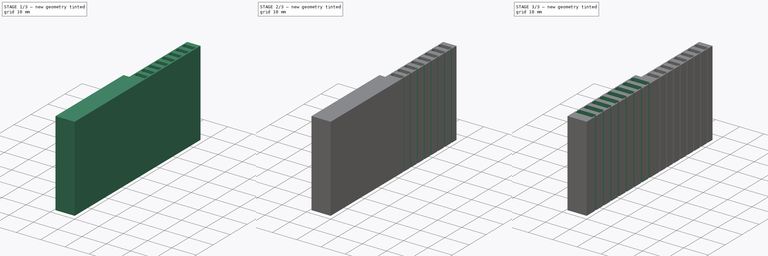
[diagram: build sequence overview — one tinted view per stage of 3, left to right]
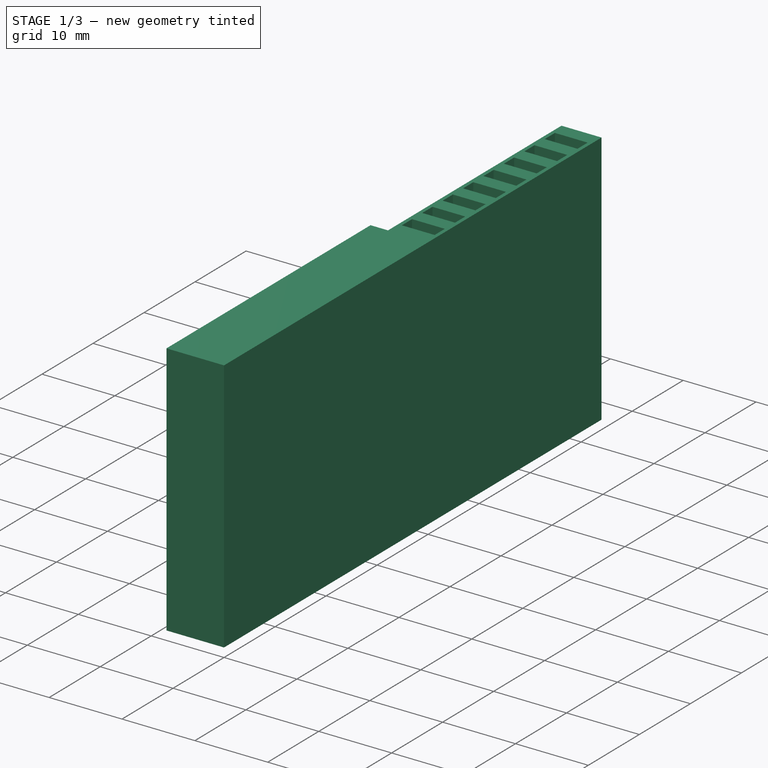
[diagram: stage 1 of 3 — iso view after this stage's code; geometry added in this stage tinted green]
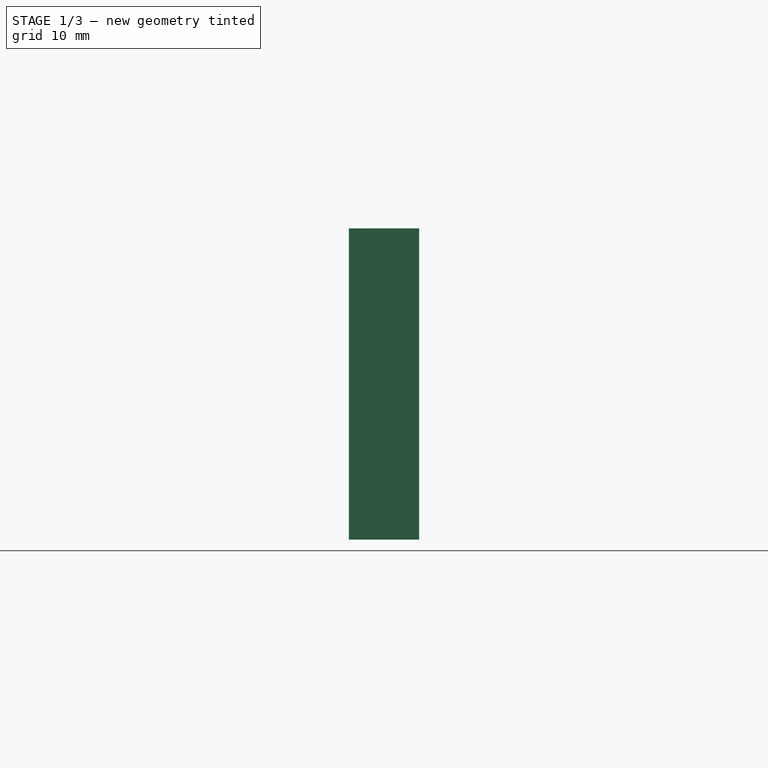
[diagram: stage 1 of 3 — front view after this stage's code; geometry added in this stage tinted green]
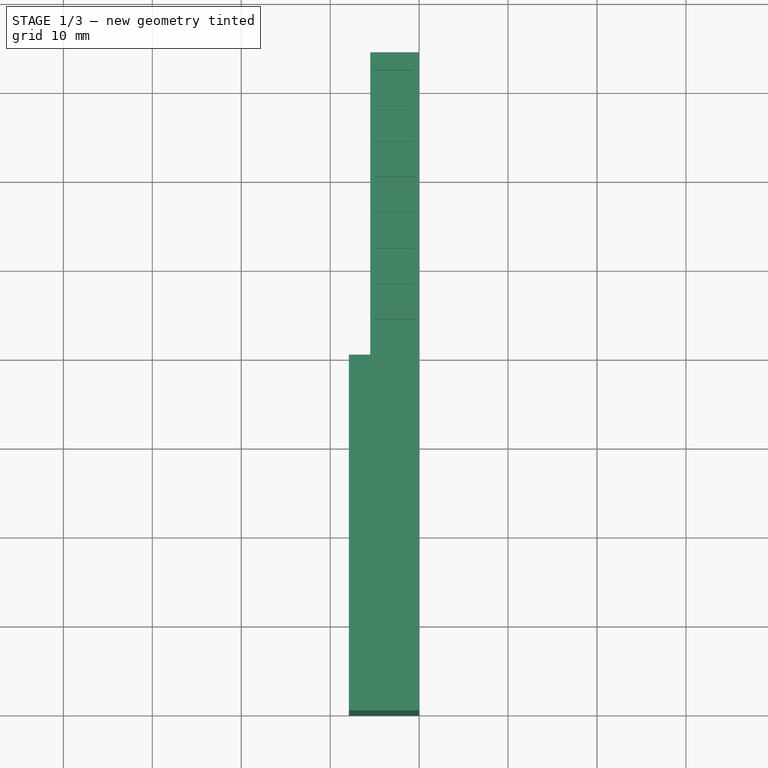
[diagram: stage 1 of 3 — top view after this stage's code; geometry added in this stage tinted green]
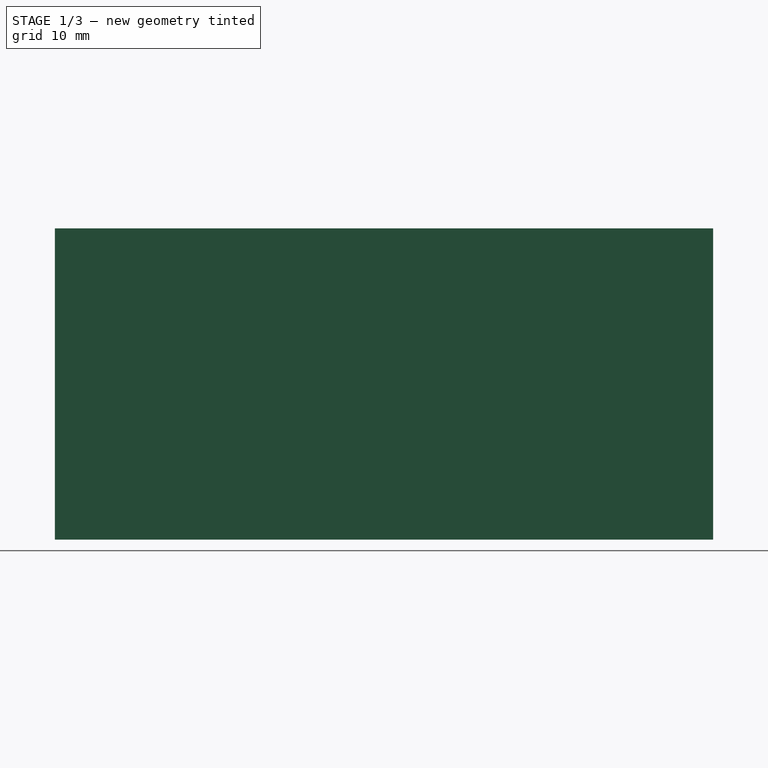
[diagram: stage 1 of 3 — right view after this stage's code; geometry added in this stage tinted green]
FCSTD DOCUMENT  (FreeCAD 0.21R33771 (Git))
Label: resistor_bending_tool_ver_1_rev0
License: All rights reserved
LicenseURL: http://en.wikipedia.org/wiki/All_rights_reserved
objects: Sketcher::SketchObject×8, PartDesign::Pocket×6, PartDesign::Pad×2, PartDesign::Body×1
note: 25 computed .brp shape members not serialized (recipe doc carries the construction recipe); baked Part::Feature solids carry a one-line shape summary decoded from their .brp

FEATURE [Sketcher::SketchObject] Sketch
  FullyConstrained = true
  MapMode = 5
  Support = -> [XY_Plane]
  sketch-geometry (4):
    g0: LineSegment StartX=0 StartY=0 StartZ=0 EndX=-7.9 EndY=0 EndZ=0
    g1: LineSegment StartX=-7.9 StartY=0 StartZ=0 EndX=-7.9 EndY=-40 EndZ=0
    g2: LineSegment StartX=-7.9 StartY=-40 StartZ=0 EndX=0 EndY=-40 EndZ=0
    g3: LineSegment StartX=0 StartY=-40 StartZ=0 EndX=0 EndY=0 EndZ=0
  constraints (11):
    c: Coincident(g0,g1)
    c: Coincident(g1,g2)
    c: Coincident(g2,g3)
    c: Coincident(g3,g0)
    c: Horizontal(g0)
    c: Horizontal(g2)
    c: Vertical(g1)
    c: Vertical(g3)
    c: Coincident(g0,g-1)
    c: DistanceY(g1,g1) = 40
    c: DistanceX(g2,g2) = 7.9
FEATURE [PartDesign::Pad] Pad
  Direction = (0,0,1)
  Length = 35
  Length2 = 10
  Profile = -> Sketch
  ReferenceAxis = -> Sketch [N_Axis]
  Refine = true
  Type = 0
FEATURE [Sketcher::SketchObject] Sketch001
  FullyConstrained = true
  MapMode = 5
  Support = -> [XY_Plane]
  sketch-geometry (4):
    g0: LineSegment StartX=0 StartY=0 StartZ=0 EndX=-5.5 EndY=0 EndZ=0
    g1: LineSegment StartX=-5.5 StartY=0 StartZ=0 EndX=-5.5 EndY=34 EndZ=0
    g2: LineSegment StartX=-5.5 StartY=34 StartZ=0 EndX=0 EndY=34 EndZ=0
    g3: LineSegment StartX=0 StartY=34 StartZ=0 EndX=0 EndY=0 EndZ=0
  constraints (11):
    c: Coincident(g0,g1)
    c: Coincident(g1,g2)
    c: Coincident(g2,g3)
    c: Coincident(g3,g0)
    c: Horizontal(g0)
    c: Horizontal(g2)
    c: Vertical(g1)
    c: Vertical(g3)
    c: Coincident(g0,g-1)
    c: DistanceY(g3,g3) = 34
    c: DistanceX(g2,g2) = 5.5
FEATURE [PartDesign::Pad] Pad001
  BaseFeature = -> Pad
  Direction = (0,0,1)
  Length = 35
  Length2 = 10
  Profile = -> Sketch001
  ReferenceAxis = -> Sketch001 [N_Axis]
  Refine = true
  Type = 0
FEATURE [Sketcher::SketchObject] Sketch002
  FullyConstrained = true
  MapMode = 5
  Placement = pos=(0,0,35) rot=(0,0,1;0rad)
  Support = -> [Pad001]
  sketch-geometry (32):
    g0: LineSegment StartX=-5 StartY=4 StartZ=0 EndX=-0.5 EndY=4 EndZ=0
    g1: LineSegment StartX=-0.5 StartY=4 StartZ=0 EndX=-0.5 EndY=2 EndZ=0
    g2: LineSegment StartX=-0.5 StartY=2 StartZ=0 EndX=-5 EndY=2 EndZ=0
    g3: LineSegment StartX=-5 StartY=2 StartZ=0 EndX=-5 EndY=4 EndZ=0
    g4: LineSegment StartX=-5 StartY=8 StartZ=0 EndX=-0.5 EndY=8 EndZ=0
    g5: LineSegment StartX=-0.5 StartY=8 StartZ=0 EndX=-0.5 EndY=6 EndZ=0
    g6: LineSegment StartX=-0.5 StartY=6 StartZ=0 EndX=-5 EndY=6 EndZ=0
    g7: LineSegment StartX=-5 StartY=6 StartZ=0 EndX=-5 EndY=8 EndZ=0
    g8: LineSegment StartX=-5 StartY=12 StartZ=0 EndX=-0.5 EndY=12 EndZ=0
    g9: LineSegment StartX=-0.5 StartY=12 StartZ=0 EndX=-0.5 EndY=10 EndZ=0
    g10: LineSegment StartX=-0.5 StartY=10 StartZ=0 EndX=-5 EndY=10 EndZ=0
    g11: LineSegment StartX=-5 StartY=10 StartZ=0 EndX=-5 EndY=12 EndZ=0
    g12: LineSegment StartX=-5 StartY=16 StartZ=0 EndX=-0.5 EndY=16 EndZ=0
    g13: LineSegment StartX=-0.5 StartY=16 StartZ=0 EndX=-0.5 EndY=14 EndZ=0
    g14: LineSegment StartX=-0.5 StartY=14 StartZ=0 EndX=-5 EndY=14 EndZ=0
    g15: LineSegment StartX=-5 StartY=14 StartZ=0 EndX=-5 EndY=16 EndZ=0
    g16: LineSegment StartX=-5 StartY=20 StartZ=0 EndX=-0.5 EndY=20 EndZ=0
    g17: LineSegment StartX=-0.5 StartY=20 StartZ=0 EndX=-0.5 EndY=18 EndZ=0
    g18: LineSegment StartX=-0.5 StartY=18 StartZ=0 EndX=-5 EndY=18 EndZ=0
    g19: LineSegment StartX=-5 StartY=18 StartZ=0 EndX=-5 EndY=20 EndZ=0
    g20: LineSegment StartX=-5 StartY=24 StartZ=0 EndX=-0.5 EndY=24 EndZ=0
    g21: LineSegment StartX=-0.5 StartY=24 StartZ=0 EndX=-0.5 EndY=22 EndZ=0
    g22: LineSegment StartX=-0.5 StartY=22 StartZ=0 EndX=-5 EndY=22 EndZ=0
    g23: LineSegment StartX=-5 StartY=22 StartZ=0 EndX=-5 EndY=24 EndZ=0
    g24: LineSegment StartX=-5 StartY=28 StartZ=0 EndX=-0.5 EndY=28 EndZ=0
    g25: LineSegment StartX=-0.5 StartY=28 StartZ=0 EndX=-0.5 EndY=26 EndZ=0
    g26: LineSegment StartX=-0.5 StartY=26 StartZ=0 EndX=-5 EndY=26 EndZ=0
    g27: LineSegment StartX=-5 StartY=26 StartZ=0 EndX=-5 EndY=28 EndZ=0
    g28: LineSegment StartX=-5 StartY=32 StartZ=0 EndX=-0.5 EndY=32 EndZ=0
    g29: LineSegment StartX=-0.5 StartY=32 StartZ=0 EndX=-0.5 EndY=30 EndZ=0
    g30: LineSegment StartX=-0.5 StartY=30 StartZ=0 EndX=-5 EndY=30 EndZ=0
    g31: LineSegment StartX=-5 StartY=30 StartZ=0 EndX=-5 EndY=32 EndZ=0
  constraints (96):
    c: Coincident(g0,g1)
    c: Coincident(g1,g2)
    c: Coincident(g2,g3)
    c: Coincident(g3,g0)
    c: Horizontal(g0)
    c: Horizontal(g2)
    c: Vertical(g1)
    c: Vertical(g3)
    c: DistanceX(g0,g0) = 4.5
    c: DistanceY(g1,g1) = 2
    c: Coincident(g4,g5)
    c: Coincident(g5,g6)
    c: Coincident(g6,g7)
    c: Coincident(g7,g4)
    c: Horizontal(g4)
    c: Horizontal(g6)
    c: Vertical(g5)
    c: Vertical(g7)
    c: Equal(g0,g4) = 4.5
    c: Equal(g1,g5) = 2
    c: Coincident(g8,g9)
    c: Coincident(g9,g10)
    c: Coincident(g10,g11)
    c: Coincident(g11,g8)
    c: Horizontal(g8)
    c: Horizontal(g10)
    c: Vertical(g9)
    c: Vertical(g11)
    c: Equal(g0,g8) = 4.5
    c: Equal(g1,g9) = 2
    c: Coincident(g12,g13)
    c: Coincident(g13,g14)
    c: Coincident(g14,g15)
    c: Coincident(g15,g12)
    c: Horizontal(g12)
    c: Horizontal(g14)
    c: Vertical(g13)
    c: Vertical(g15)
    c: Equal(g8,g12) = 4.5
    c: Equal(g9,g13) = 2
    c: Distance(g0,g-2) = 0.5
    c: Distance(g1,g-1) = 2
    c: Distance(g6,g0) = 2
    c: Distance(g4,g-2) = 0.5
    c: Distance(g9,g4) = 2
    c: Distance(g8,g-2) = 0.5
    c: Distance(g14,g8) = 2
    c: Distance(g12,g-2) = 0.5
    c: Coincident(g16,g17)
    c: Coincident(g17,g18)
    c: Coincident(g18,g19)
    c: Coincident(g19,g16)
    c: Horizontal(g16)
    c: Horizontal(g18)
    c: Vertical(g17)
    c: Vertical(g19)
    c: Equal(g0,g16) = 4.5
    c: Equal(g1,g17) = 2
    c: Coincident(g20,g21)
    c: Coincident(g21,g22)
    c: Coincident(g22,g23)
    c: Coincident(g23,g20)
    c: Horizontal(g20)
    c: Horizontal(g22)
    c: Vertical(g21)
    c: Vertical(g23)
    c: Equal(g16,g20) = 4.5
    c: Equal(g17,g21) = 2
    c: Coincident(g24,g25)
    c: Coincident(g25,g26)
    c: Coincident(g26,g27)
    c: Coincident(g27,g24)
    c: Horizontal(g24)
    c: Horizontal(g26)
    c: Vertical(g25)
    c: Vertical(g27)
    c: Equal(g16,g24) = 4.5
    c: Equal(g17,g25) = 2
    c: Coincident(g28,g29)
    c: Coincident(g29,g30)
    c: Coincident(g30,g31)
    c: Coincident(g31,g28)
    c: Horizontal(g28)
    c: Horizontal(g30)
    c: Vertical(g29)
    c: Vertical(g31)
    c: Equal(g24,g28) = 4.5
    c: Equal(g25,g29) = 2
    c: Distance(g22,g16) = 2
    c: Distance(g25,g20) = 2
    c: Distance(g30,g24) = 2
    c: Distance(g18,g12) = 2
    c: Distance(g16,g-2) = 0.5
    c: Distance(g20,g-2) = 0.5
    c: Distance(g24,g-2) = 0.5
    c: Distance(g28,g-2) = 0.5
FEATURE [PartDesign::Pocket] Pocket
  BaseFeature = -> Pad001
  Direction = (0,0,-1)
  Length = 2
  Length2 = 5
  Profile = -> Sketch002
  ReferenceAxis = -> Sketch002 [N_Axis]
  Refine = true
  Type = 0
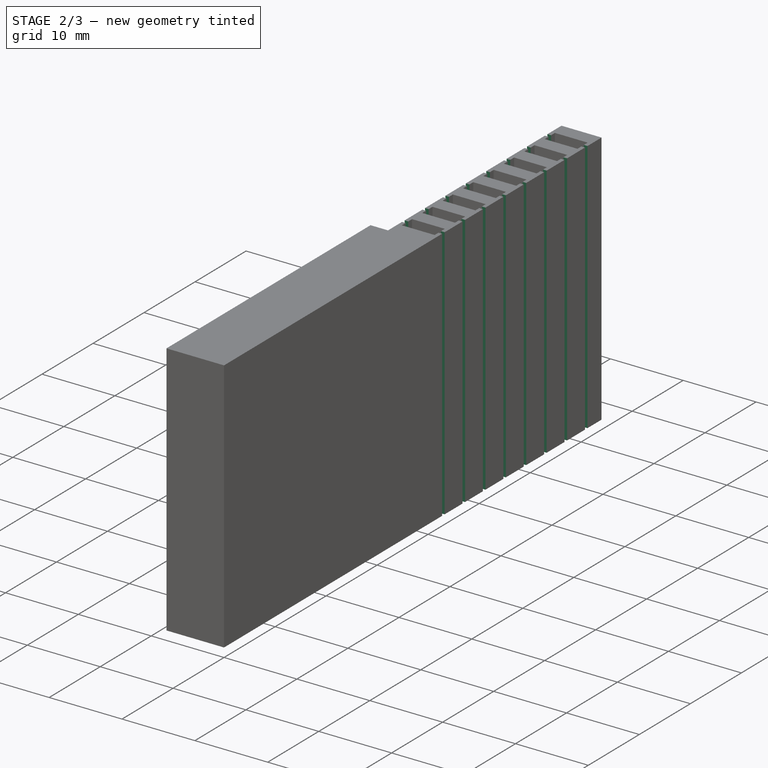
[diagram: stage 2 of 3 — iso view after this stage's code; geometry added in this stage tinted green]
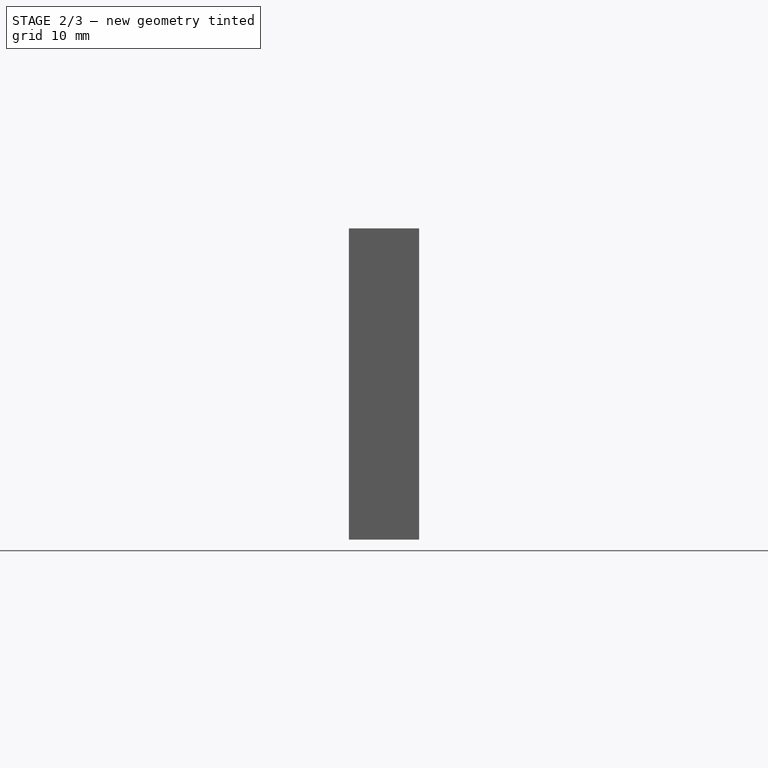
[diagram: stage 2 of 3 — front view after this stage's code; geometry added in this stage tinted green]
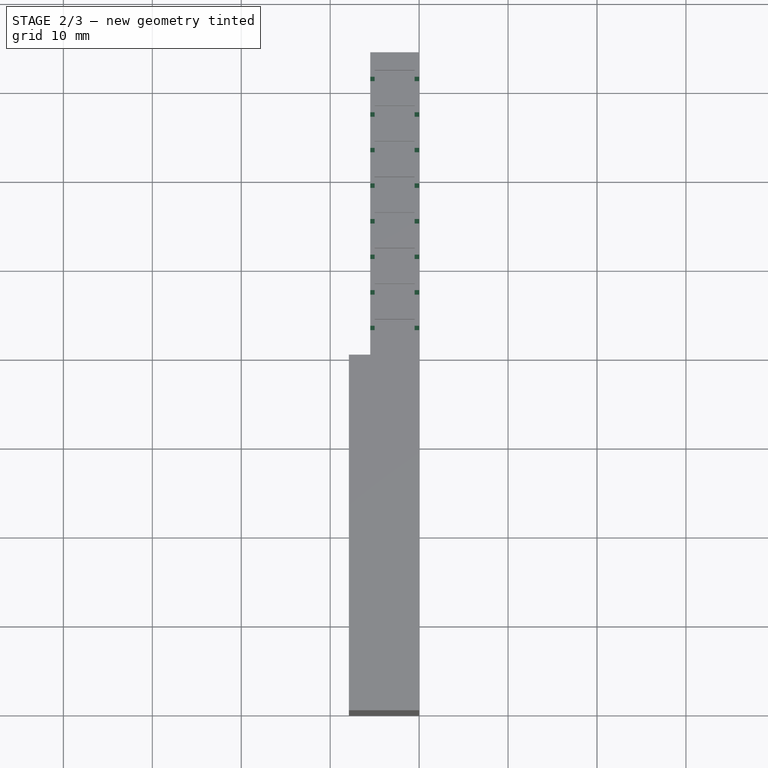
[diagram: stage 2 of 3 — top view after this stage's code; geometry added in this stage tinted green]
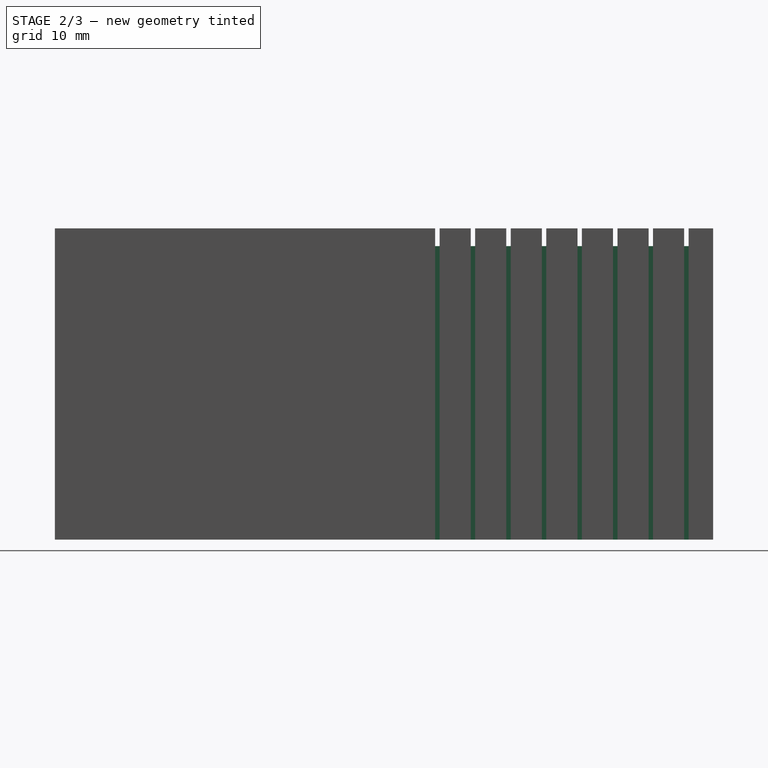
[diagram: stage 2 of 3 — right view after this stage's code; geometry added in this stage tinted green]
FEATURE [Sketcher::SketchObject] Sketch003
  FullyConstrained = true
  MapMode = 5
  Placement = pos=(0,0,0) rot=(0.57735,0.57735,0.57735;2.0944rad)
  Support = -> [Pocket]
  sketch-geometry (40):
    g0: LineSegment StartX=2.75 StartY=0 StartZ=0 EndX=2.75 EndY=35 EndZ=0
    g1: LineSegment StartX=2.75 StartY=35 StartZ=0 EndX=3.25 EndY=35 EndZ=0
    g2: LineSegment StartX=3.25 StartY=35 StartZ=0 EndX=3.25 EndY=0 EndZ=0
    g3: LineSegment StartX=3.25 StartY=0 StartZ=0 EndX=2.75 EndY=0 EndZ=0
    g4: GeomPoint X=3 Y=17.5 Z=0
    g5: LineSegment StartX=6.75 StartY=0 StartZ=0 EndX=6.75 EndY=35 EndZ=0
    g6: LineSegment StartX=6.75 StartY=35 StartZ=0 EndX=7.25 EndY=35 EndZ=0
    g7: LineSegment StartX=7.25 StartY=35 StartZ=0 EndX=7.25 EndY=0 EndZ=0
    g8: LineSegment StartX=7.25 StartY=0 StartZ=0 EndX=6.75 EndY=0 EndZ=0
    g9: GeomPoint X=7 Y=17.5 Z=0
    g10: LineSegment StartX=10.75 StartY=0 StartZ=0 EndX=10.75 EndY=35 EndZ=0
    g11: LineSegment StartX=10.75 StartY=35 StartZ=0 EndX=11.25 EndY=35 EndZ=0
    g12: LineSegment StartX=11.25 StartY=35 StartZ=0 EndX=11.25 EndY=0 EndZ=0
    g13: LineSegment StartX=11.25 StartY=0 StartZ=0 EndX=10.75 EndY=0 EndZ=0
    g14: GeomPoint X=11 Y=17.5 Z=0
    g15: LineSegment StartX=14.75 StartY=0 StartZ=0 EndX=14.75 EndY=35 EndZ=0
    g16: LineSegment StartX=14.75 StartY=35 StartZ=0 EndX=15.25 EndY=35 EndZ=0
    g17: LineSegment StartX=15.25 StartY=35 StartZ=0 EndX=15.25 EndY=0 EndZ=0
    g18: LineSegment StartX=15.25 StartY=0 StartZ=0 EndX=14.75 EndY=0 EndZ=0
    g19: GeomPoint X=15 Y=17.5 Z=0
    g20: LineSegment StartX=18.75 StartY=0 StartZ=0 EndX=18.75 EndY=35 EndZ=0
    g21: LineSegment StartX=18.75 StartY=35 StartZ=0 EndX=19.25 EndY=35 EndZ=0
    g22: LineSegment StartX=19.25 StartY=35 StartZ=0 EndX=19.25 EndY=0 EndZ=0
    g23: LineSegment StartX=19.25 StartY=0 StartZ=0 EndX=18.75 EndY=0 EndZ=0
    g24: GeomPoint X=19 Y=17.5 Z=0
    g25: LineSegment StartX=22.75 StartY=-1e-16 StartZ=0 EndX=22.75 EndY=35 EndZ=0
    g26: LineSegment StartX=22.75 StartY=35 StartZ=0 EndX=23.25 EndY=35 EndZ=0
    g27: LineSegment StartX=23.25 StartY=35 StartZ=0 EndX=23.25 EndY=0 EndZ=0
    g28: LineSegment StartX=23.25 StartY=-1e-16 StartZ=0 EndX=22.75 EndY=-1e-16 EndZ=0
    g29: GeomPoint X=23 Y=17.5 Z=0
    g30: LineSegment StartX=26.75 StartY=0 StartZ=0 EndX=26.75 EndY=35 EndZ=0
    g31: LineSegment StartX=26.75 StartY=35 StartZ=0 EndX=27.25 EndY=35 EndZ=0
    g32: LineSegment StartX=27.25 StartY=35 StartZ=0 EndX=27.25 EndY=0 EndZ=0
    g33: LineSegment StartX=27.25 StartY=0 StartZ=0 EndX=26.75 EndY=0 EndZ=0
    g34: GeomPoint X=27 Y=17.5 Z=0
    g35: LineSegment StartX=30.75 StartY=0 StartZ=0 EndX=30.75 EndY=35 EndZ=0
    g36: LineSegment StartX=30.75 StartY=35 StartZ=0 EndX=31.25 EndY=35 EndZ=0
    g37: LineSegment StartX=31.25 StartY=35 StartZ=0 EndX=31.25 EndY=0 EndZ=0
    g38: LineSegment StartX=31.25 StartY=0 StartZ=0 EndX=30.75 EndY=0 EndZ=0
    g39: GeomPoint X=31 Y=17.5 Z=0
  constraints (104):
    c: Coincident(g0,g1)
    c: Coincident(g1,g2)
    c: Coincident(g2,g3)
    c: Coincident(g3,g0)
    c: Horizontal(g1)
    c: Horizontal(g3)
    c: Vertical(g0)
    c: Vertical(g2)
    c: Symmetric(g1,g0,g4)
    c: DistanceY(g2,g2) = 35
    c: DistanceX(g3,g3) = 0.5
    c: Distance(g4,g-2) = 3
    c: Distance(g4,g-1) = 17.5
    c: Coincident(g5,g6)
    c: Coincident(g6,g7)
    c: Coincident(g7,g8)
    c: Coincident(g8,g5)
    c: Horizontal(g6)
    c: Horizontal(g8)
    c: Vertical(g5)
    c: Vertical(g7)
    c: Symmetric(g6,g5,g9)
    c: Equal(g2,g7) = 35
    c: Equal(g3,g8) = 0.5
    c: Coincident(g10,g11)
    c: Coincident(g11,g12)
    c: Coincident(g12,g13)
    c: Coincident(g13,g10)
    c: Horizontal(g11)
    c: Horizontal(g13)
    c: Vertical(g10)
    c: Vertical(g12)
    c: Symmetric(g11,g10,g14)
    c: Equal(g2,g12) = 35
    c: Equal(g3,g13) = 0.5
    c: Coincident(g15,g16)
    c: Coincident(g16,g17)
    c: Coincident(g17,g18)
    c: Coincident(g18,g15)
    c: Horizontal(g16)
    c: Horizontal(g18)
    c: Vertical(g15)
    c: Vertical(g17)
    c: Symmetric(g16,g15,g19)
    c: Equal(g12,g17) = 35
    c: Equal(g13,g18) = 0.5
    c: Coincident(g20,g21)
    c: Coincident(g21,g22)
    c: Coincident(g22,g23)
    c: Coincident(g23,g20)
    c: Horizontal(g21)
    c: Horizontal(g23)
    c: Vertical(g20)
    c: Vertical(g22)
    c: Symmetric(g21,g20,g24)
    c: Equal(g2,g22) = 35
    c: Equal(g3,g23) = 0.5
    c: Coincident(g25,g26)
    c: Coincident(g26,g27)
    c: Coincident(g27,g28)
    c: Coincident(g28,g25)
    c: Horizontal(g26)
    c: Horizontal(g28)
    c: Vertical(g25)
    c: Vertical(g27)
    c: Symmetric(g26,g25,g29)
    c: Equal(g22,g27) = 35
    c: Equal(g23,g28) = 0.5
    c: Coincident(g30,g31)
    c: Coincident(g31,g32)
    c: Coincident(g32,g33)
    c: Coincident(g33,g30)
    c: Horizontal(g31)
    c: Horizontal(g33)
    c: Vertical(g30)
    c: Vertical(g32)
    c: Symmetric(g31,g30,g34)
    c: Equal(g22,g32) = 35
    c: Equal(g23,g33) = 0.5
    c: Coincident(g35,g36)
    c: Coincident(g36,g37)
    c: Coincident(g37,g38)
    c: Coincident(g38,g35)
    c: Horizontal(g36)
    c: Horizontal(g38)
    c: Vertical(g35)
    c: Vertical(g37)
    c: Symmetric(g36,g35,g39)
    c: Equal(g32,g37) = 35
    c: Equal(g33,g38) = 0.5
    c: Distance(g9,g-1) = 17.5
    c: Distance(g14,g-1) = 17.5
    c: Distance(g19,g-1) = 17.5
    c: Distance(g24,g-1) = 17.5
    c: Distance(g29,g-1) = 17.5
    c: Distance(g34,g-1) = 17.5
    c: Distance(g39,g-1) = 17.5
    c: Distance(g9,g4) = 4
    c: Distance(g14,g9) = 4
    c: Distance(g19,g14) = 4
    c: Distance(g24,g19) = 4
    c: Distance(g29,g24) = 4
    c: Distance(g34,g29) = 4
    c: Distance(g39,g34) = 4
FEATURE [PartDesign::Pocket] Pocket001
  BaseFeature = -> Pocket
  Direction = (-1,0,0)
  Length = 0.5
  Length2 = 5
  Profile = -> Sketch003
  ReferenceAxis = -> Sketch003 [N_Axis]
  Refine = true
  Type = 0
FEATURE [Sketcher::SketchObject] Sketch004
  FullyConstrained = true
  MapMode = 5
  Placement = pos=(-5.5,0,0) rot=(0.57735,-0.57735,-0.57735;2.0944rad)
  Support = -> [Pocket001]
  sketch-geometry (40):
    g0: LineSegment StartX=-3.25 StartY=0 StartZ=0 EndX=-3.25 EndY=35 EndZ=0
    g1: LineSegment StartX=-3.25 StartY=35 StartZ=0 EndX=-2.75 EndY=35 EndZ=0
    g2: LineSegment StartX=-2.75 StartY=35 StartZ=0 EndX=-2.75 EndY=0 EndZ=0
    g3: LineSegment StartX=-2.75 StartY=0 StartZ=0 EndX=-3.25 EndY=0 EndZ=0
    g4: GeomPoint X=-3 Y=17.5 Z=0
    g5: LineSegment StartX=-7.25 StartY=0 StartZ=0 EndX=-7.25 EndY=35 EndZ=0
    g6: LineSegment StartX=-7.25 StartY=35 StartZ=0 EndX=-6.75 EndY=35 EndZ=0
    g7: LineSegment StartX=-6.75 StartY=35 StartZ=0 EndX=-6.75 EndY=0 EndZ=0
    g8: LineSegment StartX=-6.75 StartY=0 StartZ=0 EndX=-7.25 EndY=0 EndZ=0
    g9: GeomPoint X=-7 Y=17.5 Z=0
    g10: LineSegment StartX=-11.25 StartY=0 StartZ=0 EndX=-11.25 EndY=35 EndZ=0
    g11: LineSegment StartX=-11.25 StartY=35 StartZ=0 EndX=-10.75 EndY=35 EndZ=0
    g12: LineSegment StartX=-10.75 StartY=35 StartZ=0 EndX=-10.75 EndY=0 EndZ=0
    g13: LineSegment StartX=-10.75 StartY=0 StartZ=0 EndX=-11.25 EndY=0 EndZ=0
    g14: GeomPoint X=-11 Y=17.5 Z=0
    g15: LineSegment StartX=-15.25 StartY=0 StartZ=0 EndX=-15.25 EndY=35 EndZ=0
    g16: LineSegment StartX=-15.25 StartY=35 StartZ=0 EndX=-14.75 EndY=35 EndZ=0
    g17: LineSegment StartX=-14.75 StartY=35 StartZ=0 EndX=-14.75 EndY=0 EndZ=0
    g18: LineSegment StartX=-14.75 StartY=0 StartZ=0 EndX=-15.25 EndY=0 EndZ=0
    g19: GeomPoint X=-15 Y=17.5 Z=0
    g20: LineSegment StartX=-19.25 StartY=0 StartZ=0 EndX=-19.25 EndY=35 EndZ=0
    g21: LineSegment StartX=-19.25 StartY=35 StartZ=0 EndX=-18.75 EndY=35 EndZ=0
    g22: LineSegment StartX=-18.75 StartY=35 StartZ=0 EndX=-18.75 EndY=0 EndZ=0
    g23: LineSegment StartX=-18.75 StartY=0 StartZ=0 EndX=-19.25 EndY=0 EndZ=0
    g24: GeomPoint X=-19 Y=17.5 Z=0
    g25: LineSegment StartX=-23.25 StartY=0 StartZ=0 EndX=-23.25 EndY=35 EndZ=0
    g26: LineSegment StartX=-23.25 StartY=35 StartZ=0 EndX=-22.75 EndY=35 EndZ=0
    g27: LineSegment StartX=-22.75 StartY=35 StartZ=0 EndX=-22.75 EndY=0 EndZ=0
    g28: LineSegment StartX=-22.75 StartY=0 StartZ=0 EndX=-23.25 EndY=0 EndZ=0
    g29: GeomPoint X=-23 Y=17.5 Z=0
    g30: LineSegment StartX=-27.25 StartY=0 StartZ=0 EndX=-27.25 EndY=35 EndZ=0
    g31: LineSegment StartX=-27.25 StartY=35 StartZ=0 EndX=-26.75 EndY=35 EndZ=0
    g32: LineSegment StartX=-26.75 StartY=35 StartZ=0 EndX=-26.75 EndY=0 EndZ=0
    g33: LineSegment StartX=-26.75 StartY=0 StartZ=0 EndX=-27.25 EndY=0 EndZ=0
    g34: GeomPoint X=-27 Y=17.5 Z=0
    g35: LineSegment StartX=-31.25 StartY=3.908e-13 StartZ=0 EndX=-31.25 EndY=35 EndZ=0
    g36: LineSegment StartX=-31.25 StartY=35 StartZ=0 EndX=-30.75 EndY=35 EndZ=0
    g37: LineSegment StartX=-30.75 StartY=35 StartZ=0 EndX=-30.75 EndY=3.908e-13 EndZ=0
    g38: LineSegment StartX=-30.75 StartY=3.908e-13 StartZ=0 EndX=-31.25 EndY=3.908e-13 EndZ=0
    g39: GeomPoint X=-31 Y=17.5 Z=0
  constraints (104):
    c: Coincident(g0,g1)
    c: Coincident(g1,g2)
    c: Coincident(g2,g3)
    c: Coincident(g3,g0)
    c: Horizontal(g1)
    c: Horizontal(g3)
    c: Vertical(g0)
    c: Vertical(g2)
    c: Symmetric(g1,g0,g4)
    c: DistanceY(g2,g2) = 35
    c: DistanceX(g1,g1) = 0.5
    c: Distance(g4,g-1) = 17.5
    c: Distance(g4,g-2) = 3
    c: Coincident(g5,g6)
    c: Coincident(g6,g7)
    c: Coincident(g7,g8)
    c: Coincident(g8,g5)
    c: Horizontal(g6)
    c: Horizontal(g8)
    c: Vertical(g5)
    c: Vertical(g7)
    c: Symmetric(g6,g5,g9)
    c: Equal(g2,g7) = 35
    c: Equal(g1,g6) = 0.5
    c: Distance(g9,g-1) = 17.5
    c: Distance(g9,g4) = 4
    c: Coincident(g10,g11)
    c: Coincident(g11,g12)
    c: Coincident(g12,g13)
    c: Coincident(g13,g10)
    c: Horizontal(g11)
    c: Horizontal(g13)
    c: Vertical(g10)
    c: Vertical(g12)
    c: Symmetric(g11,g10,g14)
    c: Equal(g2,g12) = 35
    c: Equal(g1,g11) = 0.5
    c: Coincident(g15,g16)
    c: Coincident(g16,g17)
    c: Coincident(g17,g18)
    c: Coincident(g18,g15)
    c: Horizontal(g16)
    c: Horizontal(g18)
    c: Vertical(g15)
    c: Vertical(g17)
    c: Symmetric(g16,g15,g19)
    c: Equal(g12,g17) = 35
    c: Equal(g11,g16) = 0.5
    c: Distance(g19,g14) = 4
    c: Distance(g14,g9) = 4
    c: Distance(g14,g-1) = 17.5
    c: Distance(g19,g-1) = 17.5
    c: Coincident(g20,g21)
    c: Coincident(g21,g22)
    c: Coincident(g22,g23)
    c: Coincident(g23,g20)
    c: Horizontal(g21)
    c: Horizontal(g23)
    c: Vertical(g20)
    c: Vertical(g22)
    c: Symmetric(g21,g20,g24)
    c: Equal(g2,g22) = 35
    c: Equal(g1,g21) = 0.5
    c: Coincident(g25,g26)
    c: Coincident(g26,g27)
    c: Coincident(g27,g28)
    c: Coincident(g28,g25)
    c: Horizontal(g26)
    c: Horizontal(g28)
    c: Vertical(g25)
    c: Vertical(g27)
    c: Symmetric(g26,g25,g29)
    c: Equal(g22,g27) = 35
    c: Equal(g21,g26) = 0.5
    c: Distance(g29,g24) = 4
    c: Coincident(g30,g31)
    c: Coincident(g31,g32)
    c: Coincident(g32,g33)
    c: Coincident(g33,g30)
    c: Horizontal(g31)
    c: Horizontal(g33)
    c: Vertical(g30)
    c: Vertical(g32)
    c: Symmetric(g31,g30,g34)
    c: Equal(g22,g32) = 35
    c: Equal(g21,g31) = 0.5
    c: Coincident(g35,g36)
    c: Coincident(g36,g37)
    c: Coincident(g37,g38)
    c: Coincident(g38,g35)
    c: Horizontal(g36)
    c: Horizontal(g38)
    c: Vertical(g35)
    c: Vertical(g37)
    c: Symmetric(g36,g35,g39)
    c: Equal(g32,g37) = 35
    c: Equal(g31,g36) = 0.5
    c: Distance(g39,g34) = 4
    c: Distance(g34,g29) = 4
    c: Distance(g24,g19) = 4
    c: Distance(g24,g-1) = 17.5
    c: Distance(g29,g-1) = 17.5
    c: Distance(g34,g-1) = 17.5
    c: Distance(g39,g-1) = 17.5
FEATURE [PartDesign::Pocket] Pocket002
  BaseFeature = -> Pocket001
  Direction = (1,0,0)
  Length = 0.5
  Length2 = 5
  Profile = -> Sketch004
  ReferenceAxis = -> Sketch004 [N_Axis]
  Refine = true
  Type = 0
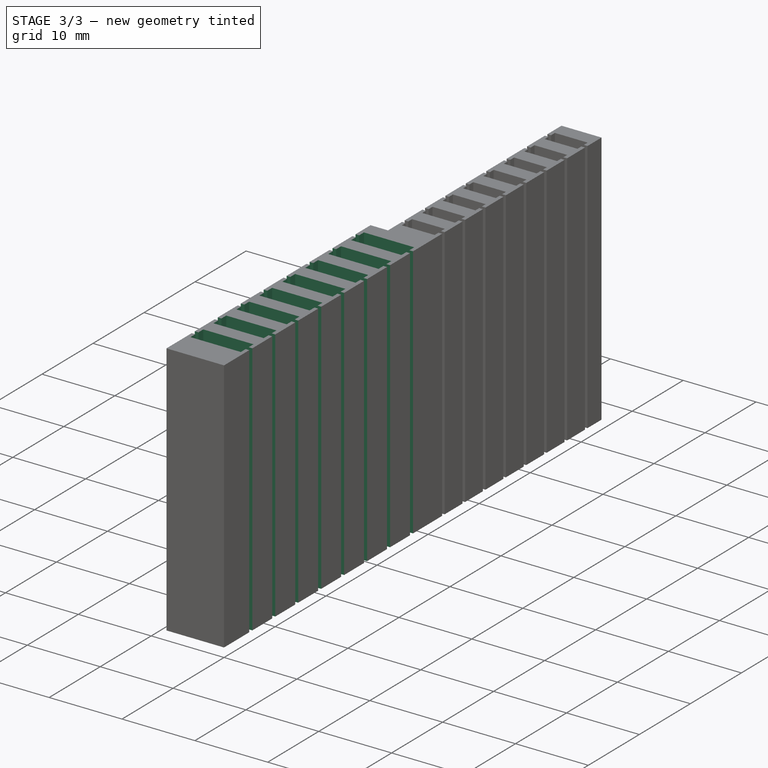
[diagram: stage 3 of 3 — iso view after this stage's code; geometry added in this stage tinted green]
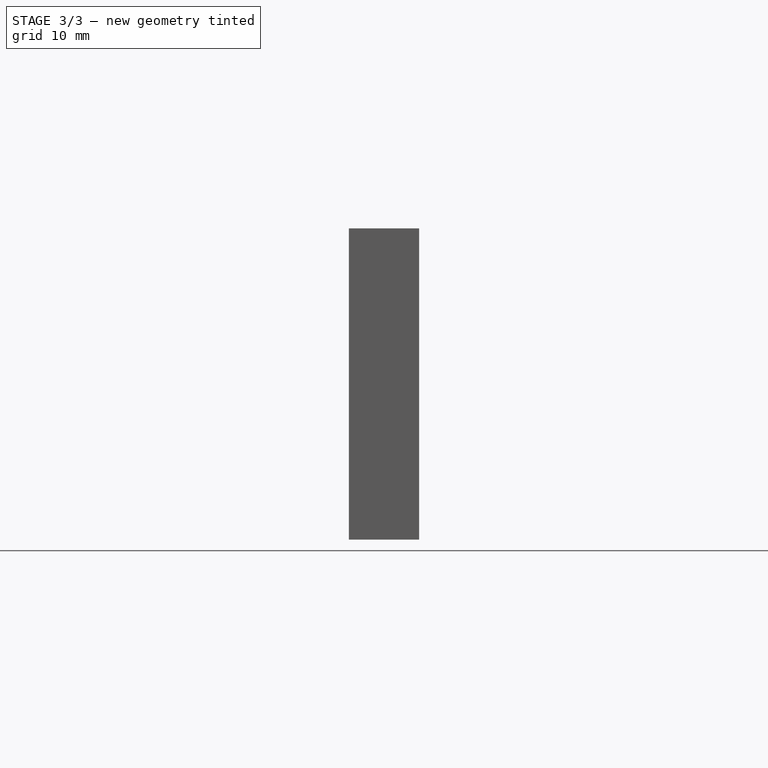
[diagram: stage 3 of 3 — front view after this stage's code; geometry added in this stage tinted green]
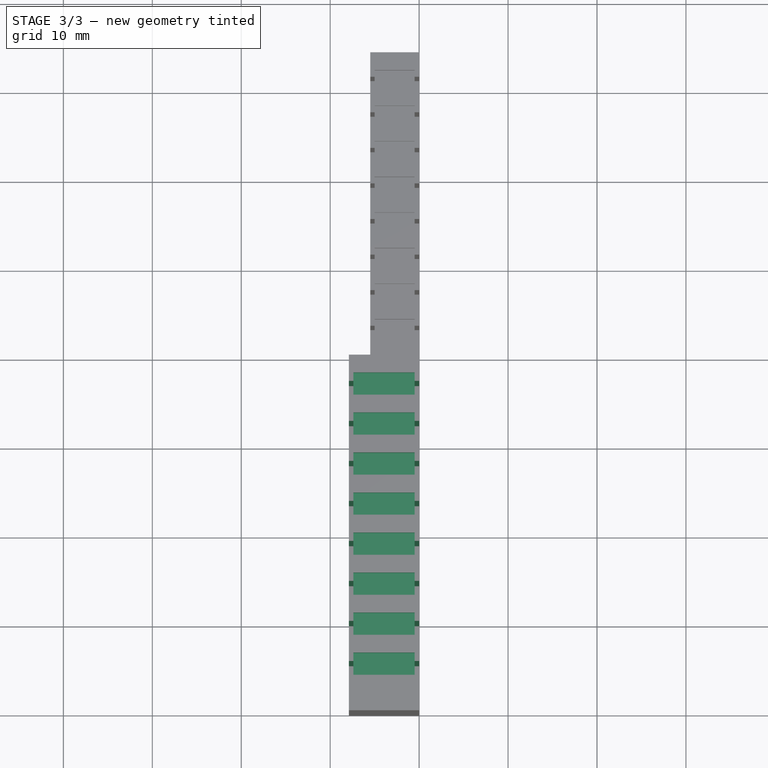
[diagram: stage 3 of 3 — top view after this stage's code; geometry added in this stage tinted green]
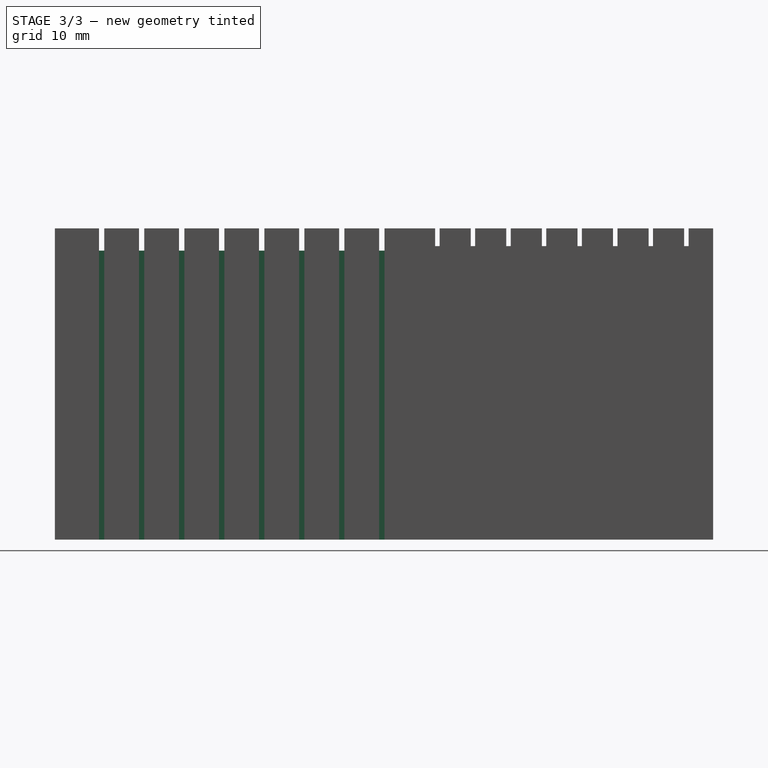
[diagram: stage 3 of 3 — right view after this stage's code; geometry added in this stage tinted green]
FEATURE [Sketcher::SketchObject] Sketch005
  FullyConstrained = true
  MapMode = 5
  Placement = pos=(0,0,35) rot=(0,0,1;0rad)
  Support = -> [Pocket002]
  sketch-geometry (40):
    g0: LineSegment StartX=-7.4 StartY=-2 StartZ=0 EndX=-7.4 EndY=-4.5 EndZ=0
    g1: LineSegment StartX=-7.4 StartY=-4.5 StartZ=0 EndX=-0.5 EndY=-4.5 EndZ=0
    g2: LineSegment StartX=-0.5 StartY=-4.5 StartZ=0 EndX=-0.5 EndY=-2 EndZ=0
    g3: LineSegment StartX=-0.5 StartY=-2 StartZ=0 EndX=-7.4 EndY=-2 EndZ=0
    g4: GeomPoint X=-3.95 Y=-3.25 Z=0
    g5: LineSegment StartX=-7.4 StartY=-6.5 StartZ=0 EndX=-7.4 EndY=-9 EndZ=0
    g6: LineSegment StartX=-7.4 StartY=-9 StartZ=0 EndX=-0.5 EndY=-9 EndZ=0
    g7: LineSegment StartX=-0.5 StartY=-9 StartZ=0 EndX=-0.5 EndY=-6.5 EndZ=0
    g8: LineSegment StartX=-0.5 StartY=-6.5 StartZ=0 EndX=-7.4 EndY=-6.5 EndZ=0
    g9: GeomPoint X=-3.95 Y=-7.75 Z=0
    g10: LineSegment StartX=-7.4 StartY=-11 StartZ=0 EndX=-7.4 EndY=-13.5 EndZ=0
    g11: LineSegment StartX=-7.4 StartY=-13.5 StartZ=0 EndX=-0.5 EndY=-13.5 EndZ=0
    g12: LineSegment StartX=-0.5 StartY=-13.5 StartZ=0 EndX=-0.5 EndY=-11 EndZ=0
    g13: LineSegment StartX=-0.5 StartY=-11 StartZ=0 EndX=-7.4 EndY=-11 EndZ=0
    g14: GeomPoint X=-3.95 Y=-12.25 Z=0
    g15: LineSegment StartX=-7.4 StartY=-15.5 StartZ=0 EndX=-7.4 EndY=-18 EndZ=0
    g16: LineSegment StartX=-7.4 StartY=-18 StartZ=0 EndX=-0.5 EndY=-18 EndZ=0
    g17: LineSegment StartX=-0.5 StartY=-18 StartZ=0 EndX=-0.5 EndY=-15.5 EndZ=0
    g18: LineSegment StartX=-0.5 StartY=-15.5 StartZ=0 EndX=-7.4 EndY=-15.5 EndZ=0
    g19: GeomPoint X=-3.95 Y=-16.75 Z=0
    g20: LineSegment StartX=-7.4 StartY=-20 StartZ=0 EndX=-7.4 EndY=-22.5 EndZ=0
    g21: LineSegment StartX=-7.4 StartY=-22.5 StartZ=0 EndX=-0.5 EndY=-22.5 EndZ=0
    g22: LineSegment StartX=-0.5 StartY=-22.5 StartZ=0 EndX=-0.5 EndY=-20 EndZ=0
    g23: LineSegment StartX=-0.5 StartY=-20 StartZ=0 EndX=-7.4 EndY=-20 EndZ=0
    g24: GeomPoint X=-3.95 Y=-21.25 Z=0
    g25: LineSegment StartX=-7.4 StartY=-24.5 StartZ=0 EndX=-7.4 EndY=-27 EndZ=0
    g26: LineSegment StartX=-7.4 StartY=-27 StartZ=0 EndX=-0.5 EndY=-27 EndZ=0
    g27: LineSegment StartX=-0.5 StartY=-27 StartZ=0 EndX=-0.5 EndY=-24.5 EndZ=0
    g28: LineSegment StartX=-0.5 StartY=-24.5 StartZ=0 EndX=-7.4 EndY=-24.5 EndZ=0
    g29: GeomPoint X=-3.95 Y=-25.75 Z=0
    g30: LineSegment StartX=-7.4 StartY=-29 StartZ=0 EndX=-7.4 EndY=-31.5 EndZ=0
    g31: LineSegment StartX=-7.4 StartY=-31.5 StartZ=0 EndX=-0.5 EndY=-31.5 EndZ=0
    g32: LineSegment StartX=-0.5 StartY=-31.5 StartZ=0 EndX=-0.5 EndY=-29 EndZ=0
    g33: LineSegment StartX=-0.5 StartY=-29 StartZ=0 EndX=-7.4 EndY=-29 EndZ=0
    g34: GeomPoint X=-3.95 Y=-30.25 Z=0
    g35: LineSegment StartX=-7.4 StartY=-33.5 StartZ=0 EndX=-7.4 EndY=-36 EndZ=0
    g36: LineSegment StartX=-7.4 StartY=-36 StartZ=0 EndX=-0.5 EndY=-36 EndZ=0
    g37: LineSegment StartX=-0.5 StartY=-36 StartZ=0 EndX=-0.5 EndY=-33.5 EndZ=0
    g38: LineSegment StartX=-0.5 StartY=-33.5 StartZ=0 EndX=-7.4 EndY=-33.5 EndZ=0
    g39: GeomPoint X=-3.95 Y=-34.75 Z=0
  constraints (104):
    c: Coincident(g0,g1)
    c: Coincident(g1,g2)
    c: Coincident(g2,g3)
    c: Coincident(g3,g0)
    c: Horizontal(g1)
    c: Horizontal(g3)
    c: Vertical(g0)
    c: Vertical(g2)
    c: Symmetric(g1,g0,g4)
    c: DistanceX(g3,g3) = 6.9
    c: DistanceY(g2,g2) = 2.5
    c: Distance(g1,g-2) = 0.5
    c: Distance(g2,g-1) = 2
    c: Coincident(g5,g6)
    c: Coincident(g6,g7)
    c: Coincident(g7,g8)
    c: Coincident(g8,g5)
    c: Horizontal(g6)
    c: Horizontal(g8)
    c: Vertical(g5)
    c: Vertical(g7)
    c: Symmetric(g6,g5,g9)
    c: Equal(g3,g8) = 6.9
    c: Equal(g2,g7) = 2.5
    c: Distance(g7,g1) = 2
    c: Distance(g6,g-2) = 0.5
    c: Coincident(g10,g11)
    c: Coincident(g11,g12)
    c: Coincident(g12,g13)
    c: Coincident(g13,g10)
    c: Horizontal(g11)
    c: Horizontal(g13)
    c: Vertical(g10)
    c: Vertical(g12)
    c: Symmetric(g11,g10,g14)
    c: Equal(g3,g13) = 6.9
    c: Equal(g2,g12) = 2.5
    c: Coincident(g15,g16)
    c: Coincident(g16,g17)
    c: Coincident(g17,g18)
    c: Coincident(g18,g15)
    c: Horizontal(g16)
    c: Horizontal(g18)
    c: Vertical(g15)
    c: Vertical(g17)
    c: Symmetric(g16,g15,g19)
    c: Equal(g13,g18) = 6.9
    c: Equal(g12,g17) = 2.5
    c: Distance(g17,g11) = 2
    c: Distance(g11,g-2) = 0.5
    c: Distance(g16,g-2) = 0.5
    c: Distance(g12,g6) = 2
    c: Coincident(g20,g21)
    c: Coincident(g21,g22)
    c: Coincident(g22,g23)
    c: Coincident(g23,g20)
    c: Horizontal(g21)
    c: Horizontal(g23)
    c: Vertical(g20)
    c: Vertical(g22)
    c: Symmetric(g21,g20,g24)
    c: Equal(g3,g23) = 6.9
    c: Equal(g2,g22) = 2.5
    c: Coincident(g25,g26)
    c: Coincident(g26,g27)
    c: Coincident(g27,g28)
    c: Coincident(g28,g25)
    c: Horizontal(g26)
    c: Horizontal(g28)
    c: Vertical(g25)
    c: Vertical(g27)
    c: Symmetric(g26,g25,g29)
    c: Equal(g23,g28) = 6.9
    c: Equal(g22,g27) = 2.5
    c: Distance(g27,g21) = 2
    c: Coincident(g30,g31)
    c: Coincident(g31,g32)
    c: Coincident(g32,g33)
    c: Coincident(g33,g30)
    c: Horizontal(g31)
    c: Horizontal(g33)
    c: Vertical(g30)
    c: Vertical(g32)
    c: Symmetric(g31,g30,g34)
    c: Equal(g23,g33) = 6.9
    c: Equal(g22,g32) = 2.5
    c: Coincident(g35,g36)
    c: Coincident(g36,g37)
    c: Coincident(g37,g38)
    c: Coincident(g38,g35)
    c: Horizontal(g36)
    c: Horizontal(g38)
    c: Vertical(g35)
    c: Vertical(g37)
    c: Symmetric(g36,g35,g39)
    c: Equal(g33,g38) = 6.9
    c: Equal(g32,g37) = 2.5
    c: Distance(g37,g31) = 2
    c: Distance(g32,g26) = 2
    c: Distance(g21,g-2) = 0.5
    c: Distance(g22,g16) = 2
    c: Distance(g27,g-2) = 0.5
    c: Distance(g32,g-2) = 0.5
    c: Distance(g37,g-2) = 0.5
FEATURE [PartDesign::Pocket] Pocket003
  BaseFeature = -> Pocket002
  Direction = (0,0,-1)
  Length = 2.5
  Length2 = 5
  Profile = -> Sketch005
  ReferenceAxis = -> Sketch005 [N_Axis]
  Refine = true
  Type = 0
FEATURE [Sketcher::SketchObject] Sketch006
  FullyConstrained = true
  MapMode = 5
  Placement = pos=(0,0,0) rot=(0.57735,0.57735,0.57735;2.0944rad)
  Support = -> [Pocket003]
  sketch-geometry (40):
    g0: LineSegment StartX=-2.95 StartY=0 StartZ=0 EndX=-2.95 EndY=35 EndZ=0
    g1: LineSegment StartX=-2.95 StartY=35 StartZ=0 EndX=-3.55 EndY=35 EndZ=0
    g2: LineSegment StartX=-3.55 StartY=35 StartZ=0 EndX=-3.55 EndY=0 EndZ=0
    g3: LineSegment StartX=-3.55 StartY=0 StartZ=0 EndX=-2.95 EndY=0 EndZ=0
    g4: GeomPoint X=-3.25 Y=17.5 Z=0
    g5: LineSegment StartX=-7.45 StartY=0 StartZ=0 EndX=-7.45 EndY=35 EndZ=0
    g6: LineSegment StartX=-7.45 StartY=35 StartZ=0 EndX=-8.05 EndY=35 EndZ=0
    g7: LineSegment StartX=-8.05 StartY=35 StartZ=0 EndX=-8.05 EndY=0 EndZ=0
    g8: LineSegment StartX=-8.05 StartY=0 StartZ=0 EndX=-7.45 EndY=0 EndZ=0
    g9: GeomPoint X=-7.75 Y=17.5 Z=0
    g10: LineSegment StartX=-11.95 StartY=0 StartZ=0 EndX=-11.95 EndY=35 EndZ=0
    g11: LineSegment StartX=-11.95 StartY=35 StartZ=0 EndX=-12.55 EndY=35 EndZ=0
    g12: LineSegment StartX=-12.55 StartY=35 StartZ=0 EndX=-12.55 EndY=0 EndZ=0
    g13: LineSegment StartX=-12.55 StartY=0 StartZ=0 EndX=-11.95 EndY=0 EndZ=0
    g14: GeomPoint X=-12.25 Y=17.5 Z=0
    g15: LineSegment StartX=-16.45 StartY=0 StartZ=0 EndX=-16.45 EndY=35 EndZ=0
    g16: LineSegment StartX=-16.45 StartY=35 StartZ=0 EndX=-17.05 EndY=35 EndZ=0
    g17: LineSegment StartX=-17.05 StartY=35 StartZ=0 EndX=-17.05 EndY=0 EndZ=0
    g18: LineSegment StartX=-17.05 StartY=0 StartZ=0 EndX=-16.45 EndY=0 EndZ=0
    g19: GeomPoint X=-16.75 Y=17.5 Z=0
    g20: LineSegment StartX=-20.95 StartY=0 StartZ=0 EndX=-20.95 EndY=35 EndZ=0
    g21: LineSegment StartX=-20.95 StartY=35 StartZ=0 EndX=-21.55 EndY=35 EndZ=0
    g22: LineSegment StartX=-21.55 StartY=35 StartZ=0 EndX=-21.55 EndY=0 EndZ=0
    g23: LineSegment StartX=-21.55 StartY=0 StartZ=0 EndX=-20.95 EndY=0 EndZ=0
    g24: GeomPoint X=-21.25 Y=17.5 Z=0
    g25: LineSegment StartX=-25.45 StartY=0 StartZ=0 EndX=-25.45 EndY=35 EndZ=0
    g26: LineSegment StartX=-25.45 StartY=35 StartZ=0 EndX=-26.05 EndY=35 EndZ=0
    g27: LineSegment StartX=-26.05 StartY=35 StartZ=0 EndX=-26.05 EndY=0 EndZ=0
    g28: LineSegment StartX=-26.05 StartY=0 StartZ=0 EndX=-25.45 EndY=0 EndZ=0
    g29: GeomPoint X=-25.75 Y=17.5 Z=0
    g30: LineSegment StartX=-29.95 StartY=0 StartZ=0 EndX=-29.95 EndY=35 EndZ=0
    g31: LineSegment StartX=-29.95 StartY=35 StartZ=0 EndX=-30.55 EndY=35 EndZ=0
    g32: LineSegment StartX=-30.55 StartY=35 StartZ=0 EndX=-30.55 EndY=0 EndZ=0
    g33: LineSegment StartX=-30.55 StartY=0 StartZ=0 EndX=-29.95 EndY=0 EndZ=0
    g34: GeomPoint X=-30.25 Y=17.5 Z=0
    g35: LineSegment StartX=-34.45 StartY=2.132e-13 StartZ=0 EndX=-34.45 EndY=35 EndZ=0
    g36: LineSegment StartX=-34.45 StartY=35 StartZ=0 EndX=-35.05 EndY=35 EndZ=0
    g37: LineSegment StartX=-35.05 StartY=35 StartZ=0 EndX=-35.05 EndY=2.132e-13 EndZ=0
    g38: LineSegment StartX=-35.05 StartY=2.132e-13 StartZ=0 EndX=-34.45 EndY=2.132e-13 EndZ=0
    g39: GeomPoint X=-34.75 Y=17.5 Z=0
  constraints (104):
    c: Coincident(g0,g1)
    c: Coincident(g1,g2)
    c: Coincident(g2,g3)
    c: Coincident(g3,g0)
    c: Horizontal(g1)
    c: Horizontal(g3)
    c: Vertical(g0)
    c: Vertical(g2)
    c: Symmetric(g1,g0,g4)
    c: DistanceY(g0,g0) = 35
    c: DistanceX(g1,g1) = 0.6
    c: Distance(g4,g-1) = 17.5
    c: Distance(g4,g-2) = 3.25
    c: Coincident(g5,g6)
    c: Coincident(g6,g7)
    c: Coincident(g7,g8)
    c: Coincident(g8,g5)
    c: Horizontal(g6)
    c: Horizontal(g8)
    c: Vertical(g5)
    c: Vertical(g7)
    c: Symmetric(g6,g5,g9)
    c: Equal(g0,g5) = 35
    c: Equal(g1,g6) = 0.6
    c: Distance(g9,g-1) = 17.5
    c: Distance(g9,g4) = 4.5
    c: Coincident(g10,g11)
    c: Coincident(g11,g12)
    c: Coincident(g12,g13)
    c: Coincident(g13,g10)
    c: Horizontal(g11)
    c: Horizontal(g13)
    c: Vertical(g10)
    c: Vertical(g12)
    c: Symmetric(g11,g10,g14)
    c: Equal(g0,g10) = 35
    c: Equal(g1,g11) = 0.6
    c: Coincident(g15,g16)
    c: Coincident(g16,g17)
    c: Coincident(g17,g18)
    c: Coincident(g18,g15)
    c: Horizontal(g16)
    c: Horizontal(g18)
    c: Vertical(g15)
    c: Vertical(g17)
    c: Symmetric(g16,g15,g19)
    c: Equal(g10,g15) = 35
    c: Equal(g11,g16) = 0.6
    c: Distance(g19,g14) = 4.5
    c: Distance(g14,g9) = 4.5
    c: Distance(g14,g-1) = 17.5
    c: Distance(g19,g-1) = 17.5
    c: Coincident(g20,g21)
    c: Coincident(g21,g22)
    c: Coincident(g22,g23)
    c: Coincident(g23,g20)
    c: Horizontal(g21)
    c: Horizontal(g23)
    c: Vertical(g20)
    c: Vertical(g22)
    c: Symmetric(g21,g20,g24)
    c: Equal(g0,g20) = 35
    c: Equal(g1,g21) = 0.6
    c: Coincident(g25,g26)
    c: Coincident(g26,g27)
    c: Coincident(g27,g28)
    c: Coincident(g28,g25)
    c: Horizontal(g26)
    c: Horizontal(g28)
    c: Vertical(g25)
    c: Vertical(g27)
    c: Symmetric(g26,g25,g29)
    c: Equal(g20,g25) = 35
    c: Equal(g21,g26) = 0.6
    c: Distance(g29,g24) = 4.5
    c: Coincident(g30,g31)
    c: Coincident(g31,g32)
    c: Coincident(g32,g33)
    c: Coincident(g33,g30)
    c: Horizontal(g31)
    c: Horizontal(g33)
    c: Vertical(g30)
    c: Vertical(g32)
    c: Symmetric(g31,g30,g34)
    c: Equal(g20,g30) = 35
    c: Equal(g21,g31) = 0.6
    c: Coincident(g35,g36)
    c: Coincident(g36,g37)
    c: Coincident(g37,g38)
    c: Coincident(g38,g35)
    c: Horizontal(g36)
    c: Horizontal(g38)
    c: Vertical(g35)
    c: Vertical(g37)
    c: Symmetric(g36,g35,g39)
    c: Equal(g30,g35) = 35
    c: Equal(g31,g36) = 0.6
    c: Distance(g39,g34) = 4.5
    c: Distance(g34,g29) = 4.5
    c: Distance(g24,g19) = 4.5
    c: Distance(g24,g-1) = 17.5
    c: Distance(g29,g-1) = 17.5
    c: Distance(g34,g-1) = 17.5
    c: Distance(g39,g-1) = 17.5
FEATURE [PartDesign::Pocket] Pocket004
  BaseFeature = -> Pocket003
  Direction = (-1,0,0)
  Length = 0.5
  Length2 = 5
  Profile = -> Sketch006
  ReferenceAxis = -> Sketch006 [N_Axis]
  Refine = true
  Type = 0
FEATURE [Sketcher::SketchObject] Sketch007
  FullyConstrained = true
  MapMode = 5
  Placement = pos=(-7.9,0,0) rot=(0.57735,-0.57735,-0.57735;2.0944rad)
  Support = -> [Pocket004]
  sketch-geometry (40):
    g0: LineSegment StartX=2.95 StartY=35 StartZ=0 EndX=2.95 EndY=0 EndZ=0
    g1: LineSegment StartX=2.95 StartY=0 StartZ=0 EndX=3.55 EndY=0 EndZ=0
    g2: LineSegment StartX=3.55 StartY=0 StartZ=0 EndX=3.55 EndY=35 EndZ=0
    g3: LineSegment StartX=3.55 StartY=35 StartZ=0 EndX=2.95 EndY=35 EndZ=0
    g4: GeomPoint X=3.25 Y=17.5 Z=0
    g5: LineSegment StartX=7.45 StartY=35 StartZ=0 EndX=7.45 EndY=0 EndZ=0
    g6: LineSegment StartX=7.45 StartY=0 StartZ=0 EndX=8.05 EndY=0 EndZ=0
    g7: LineSegment StartX=8.05 StartY=0 StartZ=0 EndX=8.05 EndY=35 EndZ=0
    g8: LineSegment StartX=8.05 StartY=35 StartZ=0 EndX=7.45 EndY=35 EndZ=0
    g9: GeomPoint X=7.75 Y=17.5 Z=0
    g10: LineSegment StartX=11.95 StartY=35 StartZ=0 EndX=11.95 EndY=0 EndZ=0
    g11: LineSegment StartX=11.95 StartY=0 StartZ=0 EndX=12.55 EndY=0 EndZ=0
    g12: LineSegment StartX=12.55 StartY=0 StartZ=0 EndX=12.55 EndY=35 EndZ=0
    g13: LineSegment StartX=12.55 StartY=35 StartZ=0 EndX=11.95 EndY=35 EndZ=0
    g14: GeomPoint X=12.25 Y=17.5 Z=0
    g15: LineSegment StartX=16.45 StartY=35 StartZ=0 EndX=16.45 EndY=0 EndZ=0
    g16: LineSegment StartX=16.45 StartY=-1.2e-15 StartZ=0 EndX=17.05 EndY=-1.2e-15 EndZ=0
    g17: LineSegment StartX=17.05 StartY=-1.2e-15 StartZ=0 EndX=17.05 EndY=35 EndZ=0
    g18: LineSegment StartX=17.05 StartY=35 StartZ=0 EndX=16.45 EndY=35 EndZ=0
    g19: GeomPoint X=16.75 Y=17.5 Z=0
    g20: LineSegment StartX=20.95 StartY=35 StartZ=0 EndX=20.95 EndY=0 EndZ=0
    g21: LineSegment StartX=20.95 StartY=0 StartZ=0 EndX=21.55 EndY=0 EndZ=0
    g22: LineSegment StartX=21.55 StartY=0 StartZ=0 EndX=21.55 EndY=35 EndZ=0
    g23: LineSegment StartX=21.55 StartY=35 StartZ=0 EndX=20.95 EndY=35 EndZ=0
    g24: GeomPoint X=21.25 Y=17.5 Z=0
    g25: LineSegment StartX=25.45 StartY=35 StartZ=0 EndX=25.45 EndY=0 EndZ=0
    g26: LineSegment StartX=25.45 StartY=-2e-15 StartZ=0 EndX=26.05 EndY=-2e-15 EndZ=0
    g27: LineSegment StartX=26.05 StartY=-2e-15 StartZ=0 EndX=26.05 EndY=35 EndZ=0
    g28: LineSegment StartX=26.05 StartY=35 StartZ=0 EndX=25.45 EndY=35 EndZ=0
    g29: GeomPoint X=25.75 Y=17.5 Z=0
    g30: LineSegment StartX=29.95 StartY=35 StartZ=0 EndX=29.95 EndY=0 EndZ=0
    g31: LineSegment StartX=29.95 StartY=0 StartZ=0 EndX=30.55 EndY=0 EndZ=0
    g32: LineSegment StartX=30.55 StartY=0 StartZ=0 EndX=30.55 EndY=35 EndZ=0
    g33: LineSegment StartX=30.55 StartY=35 StartZ=0 EndX=29.95 EndY=35 EndZ=0
    g34: GeomPoint X=30.25 Y=17.5 Z=0
    g35: LineSegment StartX=34.45 StartY=35 StartZ=0 EndX=34.45 EndY=0 EndZ=0
    g36: LineSegment StartX=34.45 StartY=0 StartZ=0 EndX=35.05 EndY=0 EndZ=0
    g37: LineSegment StartX=35.05 StartY=0 StartZ=0 EndX=35.05 EndY=35 EndZ=0
    g38: LineSegment StartX=35.05 StartY=35 StartZ=0 EndX=34.45 EndY=35 EndZ=0
    g39: GeomPoint X=34.75 Y=17.5 Z=0
  constraints (104):
    c: Coincident(g0,g1)
    c: Coincident(g1,g2)
    c: Coincident(g2,g3)
    c: Coincident(g3,g0)
    c: Horizontal(g1)
    c: Horizontal(g3)
    c: Vertical(g0)
    c: Vertical(g2)
    c: Symmetric(g1,g0,g4)
    c: DistanceX(g3,g3) = 0.6
    c: DistanceY(g2,g2) = 35
    c: Distance(g4,g-1) = 17.5
    c: Distance(g4,g-2) = 3.25
    c: Coincident(g5,g6)
    c: Coincident(g6,g7)
    c: Coincident(g7,g8)
    c: Coincident(g8,g5)
    c: Horizontal(g6)
    c: Horizontal(g8)
    c: Vertical(g5)
    c: Vertical(g7)
    c: Symmetric(g6,g5,g9)
    c: Equal(g3,g8) = 0.6
    c: Equal(g2,g7) = 35
    c: Distance(g9,g-1) = 17.5
    c: Distance(g9,g4) = 4.5
    c: Coincident(g10,g11)
    c: Coincident(g11,g12)
    c: Coincident(g12,g13)
    c: Coincident(g13,g10)
    c: Horizontal(g11)
    c: Horizontal(g13)
    c: Vertical(g10)
    c: Vertical(g12)
    c: Symmetric(g11,g10,g14)
    c: Equal(g3,g13) = 0.6
    c: Equal(g2,g12) = 35
    c: Coincident(g15,g16)
    c: Coincident(g16,g17)
    c: Coincident(g17,g18)
    c: Coincident(g18,g15)
    c: Horizontal(g16)
    c: Horizontal(g18)
    c: Vertical(g15)
    c: Vertical(g17)
    c: Symmetric(g16,g15,g19)
    c: Equal(g13,g18) = 0.6
    c: Equal(g12,g17) = 35
    c: Distance(g19,g14) = 4.5
    c: Distance(g14,g9) = 4.5
    c: Distance(g14,g-1) = 17.5
    c: Distance(g19,g-1) = 17.5
    c: Coincident(g20,g21)
    c: Coincident(g21,g22)
    c: Coincident(g22,g23)
    c: Coincident(g23,g20)
    c: Horizontal(g21)
    c: Horizontal(g23)
    c: Vertical(g20)
    c: Vertical(g22)
    c: Symmetric(g21,g20,g24)
    c: Equal(g3,g23) = 0.6
    c: Equal(g2,g22) = 35
    c: Coincident(g25,g26)
    c: Coincident(g26,g27)
    c: Coincident(g27,g28)
    c: Coincident(g28,g25)
    c: Horizontal(g26)
    c: Horizontal(g28)
    c: Vertical(g25)
    c: Vertical(g27)
    c: Symmetric(g26,g25,g29)
    c: Equal(g23,g28) = 0.6
    c: Equal(g22,g27) = 35
    c: Distance(g29,g24) = 4.5
    c: Coincident(g30,g31)
    c: Coincident(g31,g32)
    c: Coincident(g32,g33)
    c: Coincident(g33,g30)
    c: Horizontal(g31)
    c: Horizontal(g33)
    c: Vertical(g30)
    c: Vertical(g32)
    c: Symmetric(g31,g30,g34)
    c: Equal(g23,g33) = 0.6
    c: Equal(g22,g32) = 35
    c: Coincident(g35,g36)
    c: Coincident(g36,g37)
    c: Coincident(g37,g38)
    c: Coincident(g38,g35)
    c: Horizontal(g36)
    c: Horizontal(g38)
    c: Vertical(g35)
    c: Vertical(g37)
    c: Symmetric(g36,g35,g39)
    c: Equal(g33,g38) = 0.6
    c: Equal(g32,g37) = 35
    c: Distance(g39,g34) = 4.5
    c: Distance(g34,g29) = 4.5
    c: Distance(g24,g-1) = 17.5
    c: Distance(g29,g-1) = 17.5
    c: Distance(g34,g-1) = 17.5
    c: Distance(g39,g-1) = 17.5
    c: Distance(g24,g19) = 4.5
FEATURE [PartDesign::Pocket] Pocket005
  BaseFeature = -> Pocket004
  Direction = (1,0,0)
  Length = 0.5
  Length2 = 5
  Profile = -> Sketch007
  ReferenceAxis = -> Sketch007 [N_Axis]
  Refine = true
  Type = 0
FEATURE [PartDesign::Body] Body
  Group = -> [Sketch,Pad,Sketch001,Pad001,Sketch002,Pocket,Sketch003,Pocket001,Sketch004,Pocket002,Sketch005,Pocket003,Sketch006,Pocket004,Sketch007,Pocket005]
  Origin = -> Origin
  Tip = -> Pocket005
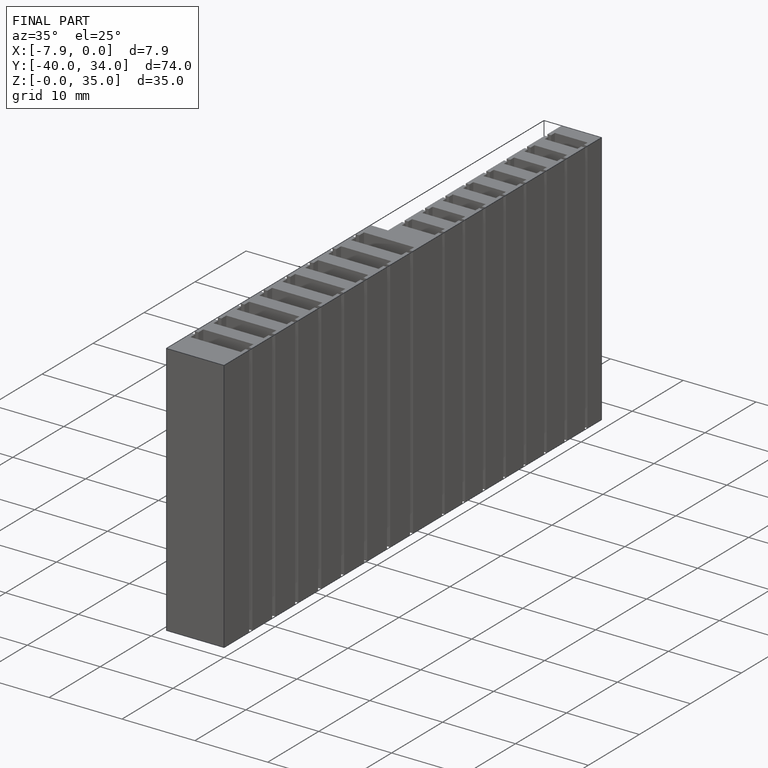
[diagram: finished part — iso view with bounding-box wireframe]
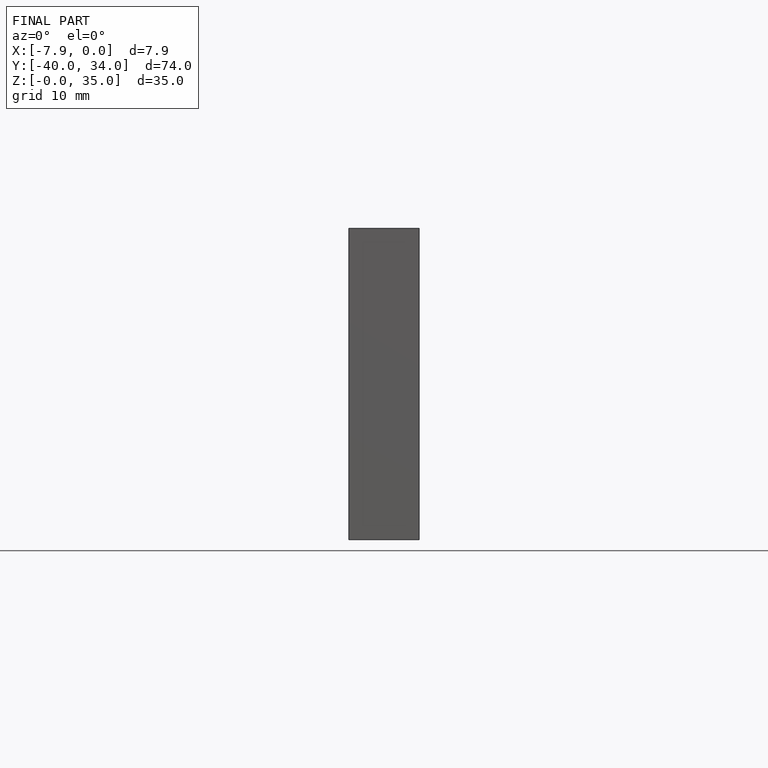
[diagram: finished part — front view with bounding-box wireframe]
